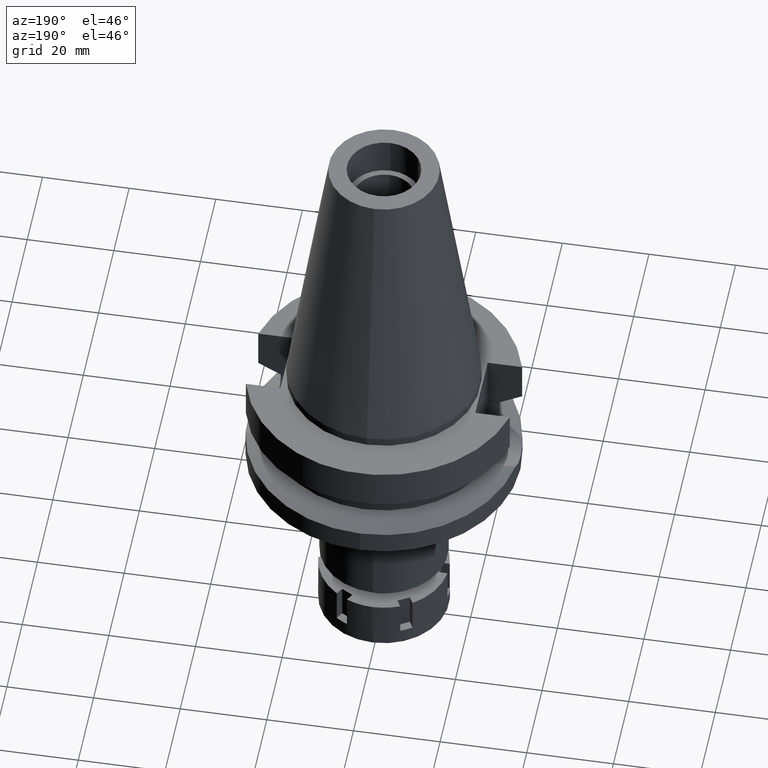
[diagram: clean part render]
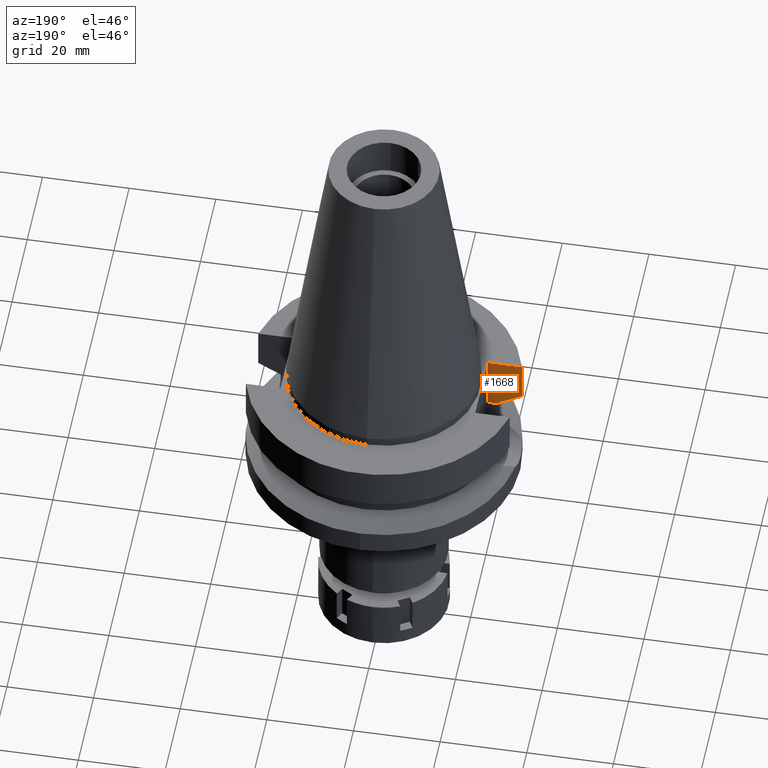
[diagram: same view with one face highlighted and labeled with its STEP entity id]
A machine part, auxiliary view. The second image highlights one B-rep face of the part: STEP entity #1668.
In plain terms, the highlighted planar face has unit normal (0, -1, 0).
Its self-contained STEP definition (entity closure, byte-faithful):
#173 = AXIS2_PLACEMENT_3D ( 'NONE', #720, #3257, #1897 ) ;
#192 = CARTESIAN_POINT ( 'NONE',  ( -22.50000000000000000, -8.050000000000000711, -14.94999999999999929 ) ) ;
#512 = FACE_OUTER_BOUND ( 'NONE', #778, .T. ) ;
#660 = LINE ( 'NONE', #1787, #3470 ) ;
#720 = CARTESIAN_POINT ( 'NONE',  ( -22.50000000000000000, -8.050000000000000711, -14.94999999999999929 ) ) ;
#778 = EDGE_LOOP ( 'NONE', ( #1313, #2191, #1165, #1777, #2621, #2471 ) ) ;
#934 = CARTESIAN_POINT ( 'NONE',  ( -26.83754595935473120, -8.049990785583563735, -13.57774899755551345 ) ) ;
#1117 = DIRECTION ( 'NONE',  ( -1.000000000000000000, 3.550916904668000126E-14, 0.0000000000000000000 ) ) ;
#1165 = ORIENTED_EDGE ( 'NONE', *, *, #3531, .F. ) ;
#1226 = CARTESIAN_POINT ( 'NONE',  ( -30.45402291533999772, -8.049999271556998792, -11.56551221358999904 ) ) ;
#1294 = VERTEX_POINT ( 'NONE', #2288 ) ;
#1313 = ORIENTED_EDGE ( 'NONE', *, *, #3352, .F. ) ;
#1340 = LINE ( 'NONE', #2989, #1589 ) ;
#1394 = CARTESIAN_POINT ( 'NONE',  ( -22.50000000000000000, -8.050000000000000711, -2.000000000000000000 ) ) ;
#1589 = VECTOR ( 'NONE', #3047, 1000.000000000000000 ) ;
#1612 = LINE ( 'NONE', #2746, #2597 ) ;
#1617 = VERTEX_POINT ( 'NONE', #1226 ) ;
#1648 = B_SPLINE_CURVE_WITH_KNOTS ( 'NONE', 3,
 ( #2690, #2335, #934, #2063 ),
 .UNSPECIFIED., .F., .F.,
 ( 4, 4 ),
 ( 0.0000000000000000000, 1.000000000000000000 ),
 .UNSPECIFIED. ) ;
#1668 = ADVANCED_FACE ( 'NONE', ( #512 ), #2741, .F. ) ;
#1742 = EDGE_CURVE ( 'NONE', #3461, #3269, #2462, .T. ) ;
#1777 = ORIENTED_EDGE ( 'NONE', *, *, #2164, .T. ) ;
#1787 = CARTESIAN_POINT ( 'NONE',  ( -30.45402291533999772, -8.049999271556998792, -11.56551221358999904 ) ) ;
#1897 = DIRECTION ( 'NONE',  ( 0.0000000000000000000, 0.0000000000000000000, -1.000000000000000000 ) ) ;
#2063 = CARTESIAN_POINT ( 'NONE',  ( -25.24772413691999873, -8.049995397887000692, -14.45229216477000023 ) ) ;
#2164 = EDGE_CURVE ( 'NONE', #1294, #3461, #1340, .T. ) ;
#2179 = CARTESIAN_POINT ( 'NONE',  ( -30.45402272279000044, -8.050000000000000711, -2.000000000000000000 ) ) ;
#2191 = ORIENTED_EDGE ( 'NONE', *, *, #3012, .T. ) ;
#2216 = DIRECTION ( 'NONE',  ( -2.948194669204010460E-06, 9.246614718524039737E-06, 0.9999999999529041173 ) ) ;
#2288 = CARTESIAN_POINT ( 'NONE',  ( -22.50000000000000000, -8.050000000000000711, -2.000000000000000000 ) ) ;
#2335 = CARTESIAN_POINT ( 'NONE',  ( -28.57292309718049594, -8.049998544064452588, -12.61549616513624272 ) ) ;
#2372 = CARTESIAN_POINT ( 'NONE',  ( -25.24772266958000344, -8.050000000000000711, -14.94999999999999929 ) ) ;
#2457 = VECTOR ( 'NONE', #3568, 1000.000000000000000 ) ;
#2462 = LINE ( 'NONE', #192, #2457 ) ;
#2471 = ORIENTED_EDGE ( 'NONE', *, *, #2640, .T. ) ;
#2597 = VECTOR ( 'NONE', #2216, 1000.000000000000114 ) ;
#2621 = ORIENTED_EDGE ( 'NONE', *, *, #1742, .T. ) ;
#2640 = EDGE_CURVE ( 'NONE', #3269, #2679, #1612, .T. ) ;
#2679 = VERTEX_POINT ( 'NONE', #2732 ) ;
#2690 = CARTESIAN_POINT ( 'NONE',  ( -30.45402291533999772, -8.049999271556998792, -11.56551221358999904 ) ) ;
#2695 = VERTEX_POINT ( 'NONE', #2179 ) ;
#2732 = CARTESIAN_POINT ( 'NONE',  ( -25.24772413691999873, -8.049995397887000692, -14.45229216477000023 ) ) ;
#2741 = PLANE ( 'NONE',  #173 ) ;
#2746 = CARTESIAN_POINT ( 'NONE',  ( -25.24772266958000344, -8.050000000000000711, -14.94999999999999929 ) ) ;
#2989 = CARTESIAN_POINT ( 'NONE',  ( -22.50000000000000000, -8.050000000000000711, -2.000000000000000000 ) ) ;
#3007 = CARTESIAN_POINT ( 'NONE',  ( -22.50000000000000000, -8.050000000000000711, -14.94999999999999929 ) ) ;
#3011 = VECTOR ( 'NONE', #1117, 1000.000000000000000 ) ;
#3012 = EDGE_CURVE ( 'NONE', #1617, #2695, #660, .T. ) ;
#3046 = LINE ( 'NONE', #1394, #3011 ) ;
#3047 = DIRECTION ( 'NONE',  ( 0.0000000000000000000, 0.0000000000000000000, -1.000000000000000000 ) ) ;
#3161 = DIRECTION ( 'NONE',  ( 2.012967042924988707E-08, -7.615298640655955815E-08, 0.9999999999999968914 ) ) ;
#3257 = DIRECTION ( 'NONE',  ( 0.0000000000000000000, -1.000000000000000000, 0.0000000000000000000 ) ) ;
#3269 = VERTEX_POINT ( 'NONE', #2372 ) ;
#3352 = EDGE_CURVE ( 'NONE', #1617, #2679, #1648, .T. ) ;
#3461 = VERTEX_POINT ( 'NONE', #3007 ) ;
#3470 = VECTOR ( 'NONE', #3161, 1000.000000000000000 ) ;
#3531 = EDGE_CURVE ( 'NONE', #1294, #2695, #3046, .T. ) ;
#3568 = DIRECTION ( 'NONE',  ( -1.000000000000000000, 1.616208268639000174E-14, -1.034373291929000154E-14 ) ) ;